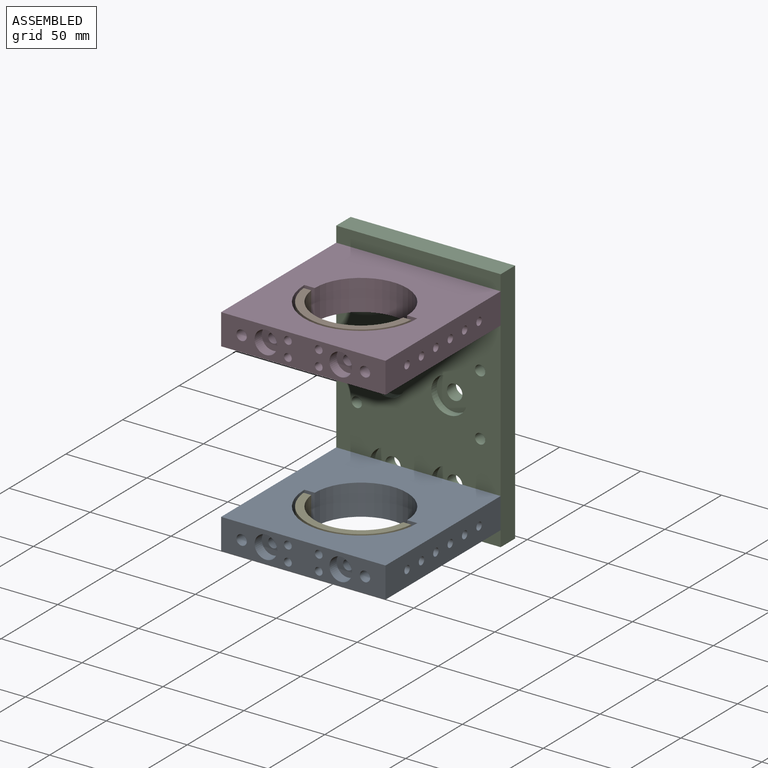
[diagram: assembled view]
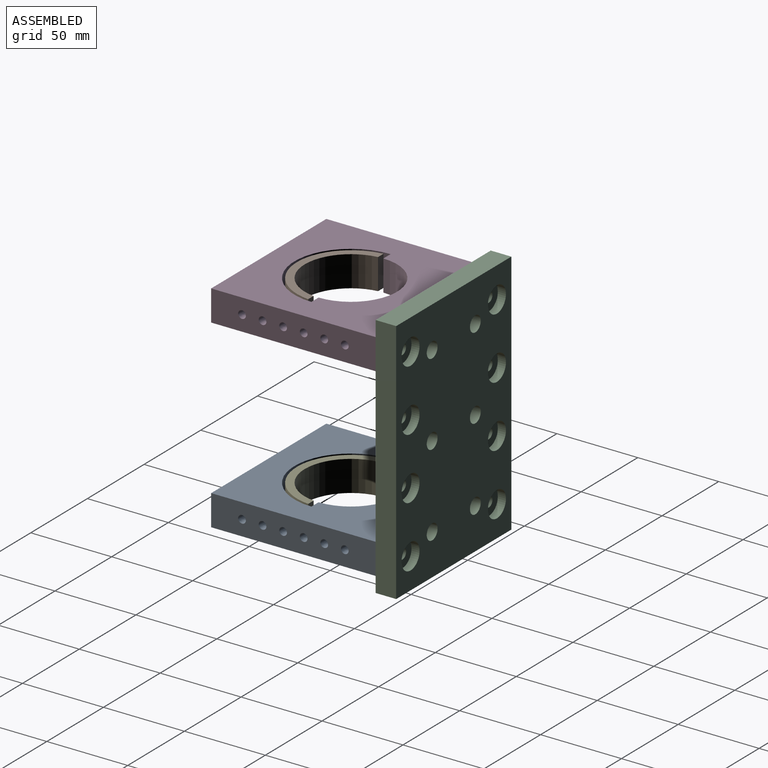
[diagram: assembled view, second angle]
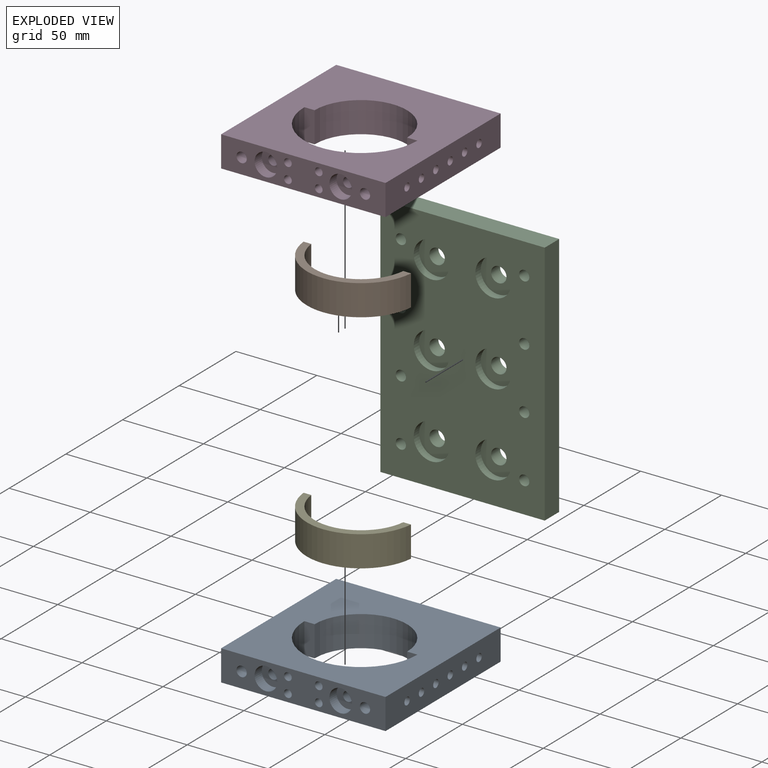
[diagram: exploded view]
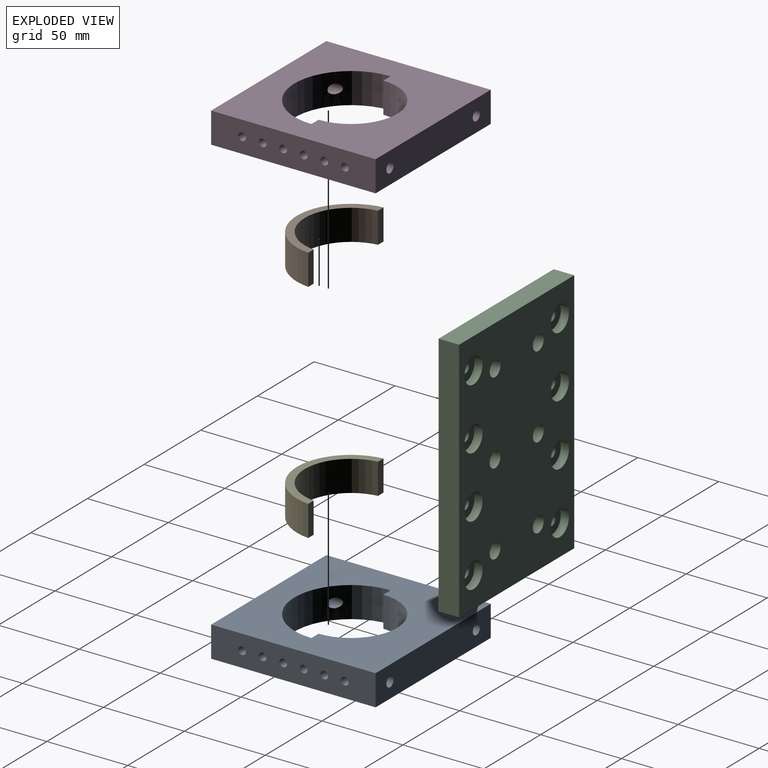
[diagram: exploded view, second angle]
ASSEMBLY  parts=5 mates=8
PART A: 56 faces, bbox 101.6x101.6x19.1 mm
  f0: plane 101.6x19.05mm, normal (-1,0,0), area 1828.6mm2, adj f2,f4,f5,f6,f37,f39,f41,f43
  f1: plane 101.6x19.05mm, normal (1,0,0), area 1828.6mm2, adj f2,f4,f5,f6,f24,f26,f28,f30
  f2: plane 101.6x19.05mm, normal (0,1,0), area 1493mm2, adj f0,f1,f4,f5,f7,f9,f20,f22
  f3: cylinder r=34.92mm len=69.85mm, axis (0,0,1), area 2014.3mm2, adj f4,f5,f16,f17,f18,f19
  f4: plane 101.6x101.6mm, normal (0,0,-1), area 7124mm2, adj f0,f1,f2,f3,f6,f15,f16,f17
  f5: plane 101.6x101.6mm, normal (0,0,1), area 7124mm2, adj f0,f1,f2,f3,f6,f15,f16,f17
  f6: plane 101.6x19.05mm, normal (0,-1,0), area 1872.1mm2, adj f0,f1,f4,f5,f11,f13
  f7: cylinder r=3.17mm len=10mm, axis (0,1,0), area 199.5mm2, adj f2,f8
  f8: plane 6.35x6.35mm, normal (0,1,0), area 31.7mm2, adj f7
  f9: cylinder r=3.17mm len=10mm, axis (0,1,0), area 199.5mm2, adj f2,f10
  f10: plane 6.35x6.35mm, normal (0,1,0), area 31.7mm2, adj f9
  f11: cylinder r=3.17mm len=12.7mm, axis (0,-1,0), area 253.4mm2, adj f6,f12
  f12: plane 6.35x6.35mm, normal (0,-1,0), area 31.7mm2, adj f11
  f13: cylinder r=3.17mm len=12.7mm, axis (0,-1,0), area 253.4mm2, adj f6,f14
  f14: plane 6.35x6.35mm, normal (0,-1,0), area 31.7mm2, adj f13
  f15: cylinder r=28.57mm len=57.15mm, axis (0,0,1), area 1710.1mm2, adj f4,f5,f16,f17
  f16: plane 19.05x6.35mm, normal (0,1,0), area 121mm2, adj f3,f4,f5,f15
  f17: plane 19.05x6.35mm, normal (0,1,0), area 121mm2, adj f3,f4,f5,f15
  f18: cylinder r=3mm len=21.24mm, axis (0,1,0), area 347mm2, adj f3,f23
  f19: cylinder r=3mm len=21.24mm, axis (0,1,0), area 347mm2, adj f3,f21
  f20: cylinder r=7mm len=14mm, axis (0,1,0), area 279.3mm2, adj f2,f21
  f21: plane 14x14mm, normal (0,1,0), area 125.7mm2, adj f19,f20
  f22: cylinder r=7mm len=14mm, axis (0,1,0), area 279.3mm2, adj f2,f23
  f23: plane 14x14mm, normal (0,1,0), area 125.7mm2, adj f18,f22
  f24: cylinder r=2.38mm len=9.53mm, axis (1,0,0), area 142.5mm2, adj f1,f25
  f25: plane 4.76x4.76mm, normal (1,0,0), area 17.8mm2, adj f24
  f26: cylinder r=2.38mm len=9.53mm, axis (1,0,0), area 142.5mm2, adj f1,f27
  f27: plane 4.76x4.76mm, normal (1,0,0), area 17.8mm2, adj f26
  f28: cylinder r=2.38mm len=9.53mm, axis (1,0,0), area 142.5mm2, adj f1,f29
  f29: plane 4.76x4.76mm, normal (1,0,0), area 17.8mm2, adj f28
  f30: cylinder r=2.38mm len=9.53mm, axis (1,0,0), area 142.5mm2, adj f1,f31
  f31: plane 4.76x4.76mm, normal (1,0,0), area 17.8mm2, adj f30
  f32: cylinder r=2.38mm len=9.53mm, axis (1,0,0), area 142.5mm2, adj f1,f33
  f33: plane 4.76x4.76mm, normal (1,0,0), area 17.8mm2, adj f32
  f34: cylinder r=2.38mm len=9.53mm, axis (1,0,0), area 142.5mm2, adj f1,f35
  f35: plane 4.76x4.76mm, normal (1,0,0), area 17.8mm2, adj f34
  f36: plane 4.76x4.76mm, normal (-1,0,0), area 17.8mm2, adj f37
  f37: cylinder r=2.38mm len=9.53mm, axis (-1,0,0), area 142.5mm2, adj f0,f36
  f38: plane 4.76x4.76mm, normal (-1,0,0), area 17.8mm2, adj f39
  f39: cylinder r=2.38mm len=9.53mm, axis (-1,0,0), area 142.5mm2, adj f0,f38
  f40: plane 4.76x4.76mm, normal (-1,0,0), area 17.8mm2, adj f41
  f41: cylinder r=2.38mm len=9.53mm, axis (-1,0,0), area 142.5mm2, adj f0,f40
  f42: plane 4.76x4.76mm, normal (-1,0,0), area 17.8mm2, adj f43
  f43: cylinder r=2.38mm len=9.53mm, axis (-1,0,0), area 142.5mm2, adj f0,f42
  f44: plane 4.76x4.76mm, normal (-1,0,0), area 17.8mm2, adj f45
  f45: cylinder r=2.38mm len=9.53mm, axis (-1,0,0), area 142.5mm2, adj f0,f44
  f46: cylinder r=2.38mm len=9.53mm, axis (-1,0,0), area 142.5mm2, adj f0,f47
  f47: plane 4.76x4.76mm, normal (-1,0,0), area 17.8mm2, adj f46
  f48: cylinder r=2.38mm len=12.7mm, axis (0,1,0), area 190mm2, adj f2,f49
  f49: plane 4.76x4.76mm, normal (0,1,0), area 17.8mm2, adj f48
  f50: cylinder r=2.38mm len=12.7mm, axis (0,1,0), area 190mm2, adj f2,f51
  f51: plane 4.76x4.76mm, normal (0,1,0), area 17.8mm2, adj f50
  f52: cylinder r=2.38mm len=12.7mm, axis (0,1,0), area 190mm2, adj f2,f53
  f53: plane 4.76x4.76mm, normal (0,1,0), area 17.8mm2, adj f52
  f54: cylinder r=2.38mm len=12.7mm, axis (0,1,0), area 190mm2, adj f2,f55
  f55: plane 4.76x4.76mm, normal (0,1,0), area 17.8mm2, adj f54
PART B: 6 faces, bbox 66.4x30.2x19.1 mm
  f0: plane 66.37x30.16mm, normal (0,0,-1), area 432.9mm2, adj f1,f3,f4,f5
  f1: cylinder r=33.34mm len=66.37mm, axis (0,0,1), area 1874mm2, adj f0,f2,f3,f4
  f2: plane 66.37x30.16mm, normal (0,0,1), area 432.9mm2, adj f1,f3,f4,f5
  f3: plane 19.05x4.79mm, normal (0,-1,0), area 91.2mm2, adj f0,f1,f2,f5
  f4: plane 19.05x4.79mm, normal (0,-1,0), area 91.2mm2, adj f0,f1,f2,f5
  f5: cylinder r=28.57mm len=56.8mm, axis (0,0,1), area 1588.9mm2, adj f0,f2,f3,f4
PART C: 48 faces, bbox 101.6x12.7x152.4 mm
  f0: cylinder r=4.76mm len=9.53mm, axis (0,-1,0), area 237.5mm2, adj f19,f46
  f1: cylinder r=4.76mm len=9.53mm, axis (0,-1,0), area 237.5mm2, adj f19,f44
  f2: cylinder r=4.76mm len=9.53mm, axis (0,-1,0), area 237.5mm2, adj f19,f42
  f3: cylinder r=4.76mm len=9.53mm, axis (0,-1,0), area 237.5mm2, adj f19,f40
  f4: cylinder r=4.76mm len=9.53mm, axis (0,-1,0), area 237.5mm2, adj f19,f38
  f5: cylinder r=4.76mm len=9.53mm, axis (0,-1,0), area 237.5mm2, adj f19,f36
  f6: cylinder r=3.17mm len=7.7mm, axis (0,-1,0), area 153.6mm2, adj f18,f34
  f7: cylinder r=3.17mm len=7.7mm, axis (0,-1,0), area 153.6mm2, adj f18,f32
  f8: cylinder r=3.17mm len=7.7mm, axis (0,-1,0), area 153.6mm2, adj f18,f30
  f9: cylinder r=3.17mm len=7.7mm, axis (0,-1,0), area 153.6mm2, adj f18,f28
  f10: cylinder r=3.17mm len=7.7mm, axis (0,-1,0), area 153.6mm2, adj f18,f26
  f11: cylinder r=3.17mm len=7.7mm, axis (0,-1,0), area 153.6mm2, adj f18,f24
  f12: cylinder r=3.17mm len=7.7mm, axis (0,-1,0), area 153.6mm2, adj f18,f22
  f13: cylinder r=3.17mm len=7.7mm, axis (0,-1,0), area 153.6mm2, adj f18,f20
  f14: plane 101.6x12.7mm, normal (0,0,1), area 1290.3mm2, adj f15,f17,f18,f19
  f15: plane 152.4x12.7mm, normal (-1,0,0), area 1935.5mm2, adj f14,f16,f18,f19
  f16: plane 101.6x12.7mm, normal (0,0,-1), area 1290.3mm2, adj f15,f17,f18,f19
  f17: plane 152.4x12.7mm, normal (1,0,0), area 1935.5mm2, adj f14,f16,f18,f19
  f18: plane 152.4x101.6mm, normal (0,-1,0), area 12902.8mm2, adj f6,f7,f8,f9,f10,f11,f12,f13
  f19: plane 152.4x101.6mm, normal (0,1,0), area 13472.8mm2, adj f0,f1,f2,f3,f4,f5,f14,f15
  f20: plane 15.88x15.88mm, normal (0,1,0), area 166.3mm2, adj f13,f21
  f21: cylinder r=7.94mm len=15.88mm, axis (0,1,0), area 249.4mm2, adj f19,f20
  f22: plane 15.88x15.88mm, normal (0,1,0), area 166.3mm2, adj f12,f23
  f23: cylinder r=7.94mm len=15.88mm, axis (0,1,0), area 249.4mm2, adj f19,f22
  f24: plane 15.88x15.88mm, normal (0,1,0), area 166.3mm2, adj f11,f25
  f25: cylinder r=7.94mm len=15.88mm, axis (0,1,0), area 249.4mm2, adj f19,f24
  f26: plane 15.88x15.88mm, normal (0,1,0), area 166.3mm2, adj f10,f27
  f27: cylinder r=7.94mm len=15.88mm, axis (0,1,0), area 249.4mm2, adj f19,f26
  f28: plane 15.88x15.88mm, normal (0,1,0), area 166.3mm2, adj f9,f29
  f29: cylinder r=7.94mm len=15.88mm, axis (0,1,0), area 249.4mm2, adj f19,f28
  f30: plane 15.88x15.88mm, normal (0,1,0), area 166.3mm2, adj f8,f31
  f31: cylinder r=7.94mm len=15.88mm, axis (0,1,0), area 249.4mm2, adj f19,f30
  f32: plane 15.88x15.88mm, normal (0,1,0), area 166.3mm2, adj f7,f33
  f33: cylinder r=7.94mm len=15.88mm, axis (0,1,0), area 249.4mm2, adj f19,f32
  f34: plane 15.88x15.88mm, normal (0,1,0), area 166.3mm2, adj f6,f35
  f35: cylinder r=7.94mm len=15.88mm, axis (0,1,0), area 249.4mm2, adj f19,f34
  f36: plane 22.23x22.23mm, normal (0,-1,0), area 316.7mm2, adj f5,f37
  f37: cylinder r=11.11mm len=22.23mm, axis (0,-1,0), area 332.5mm2, adj f18,f36
  f38: plane 22.23x22.23mm, normal (0,-1,0), area 316.7mm2, adj f4,f39
  f39: cylinder r=11.11mm len=22.23mm, axis (0,-1,0), area 332.5mm2, adj f18,f38
  f40: plane 22.23x22.23mm, normal (0,-1,0), area 316.7mm2, adj f3,f41
  f41: cylinder r=11.11mm len=22.23mm, axis (0,-1,0), area 332.5mm2, adj f18,f40
  f42: plane 22.23x22.23mm, normal (0,-1,0), area 316.7mm2, adj f2,f43
  f43: cylinder r=11.11mm len=22.23mm, axis (0,-1,0), area 332.5mm2, adj f18,f42
  f44: plane 22.23x22.23mm, normal (0,-1,0), area 316.7mm2, adj f1,f45
  f45: cylinder r=11.11mm len=22.23mm, axis (0,-1,0), area 332.5mm2, adj f18,f44
  f46: plane 22.23x22.23mm, normal (0,-1,0), area 316.7mm2, adj f0,f47
  f47: cylinder r=11.11mm len=22.23mm, axis (0,-1,0), area 332.5mm2, adj f18,f46
PART D: same geometry as A
PART E: same geometry as B
PLACE A rot(axis=(1,0,0),180deg) t=(-73.99,-134.69,-66.72)mm
PLACE B rot(axis=(1,0,0),180deg) t=(-73.99,-134.69,47.58)mm
PLACE C t=(-73.99,-20.39,-19.1)mm
PLACE D rot(axis=(1,0,0),180deg) t=(-73.99,-134.69,47.58)mm
PLACE E rot(axis=(1,0,0),180deg) t=(-73.99,-134.69,-66.72)mm
MATE cylindrical D.f7 <-> C.f13  axis (0,1,0) through (-35.89,-33.09,38.05)mm
MATE cylindrical E.f1 <-> A.f3  axis (0,0,-1) through (-73.99,-83.89,-76.25)mm
MATE cylindrical C.f12 <-> A.f9  axis (0,-1,0) through (-112.09,-33.09,-76.25)mm
MATE cylindrical B.f1 <-> D.f3  axis (0,0,-1) through (-73.99,-83.89,28.53)mm
MATE cylindrical D.f9 <-> C.f6  axis (0,1,0) through (-112.09,-33.09,38.05)mm
MATE planar A.f6 <-> C.f18  axis (0,1,0) through (-73.99,-33.09,-76.25)mm
MATE cylindrical C.f7 <-> A.f7  axis (0,-1,0) through (-35.89,-33.09,-76.25)mm
MATE planar D.f6 <-> C.f18  axis (0,1,0) through (-73.99,-33.09,38.05)mm
